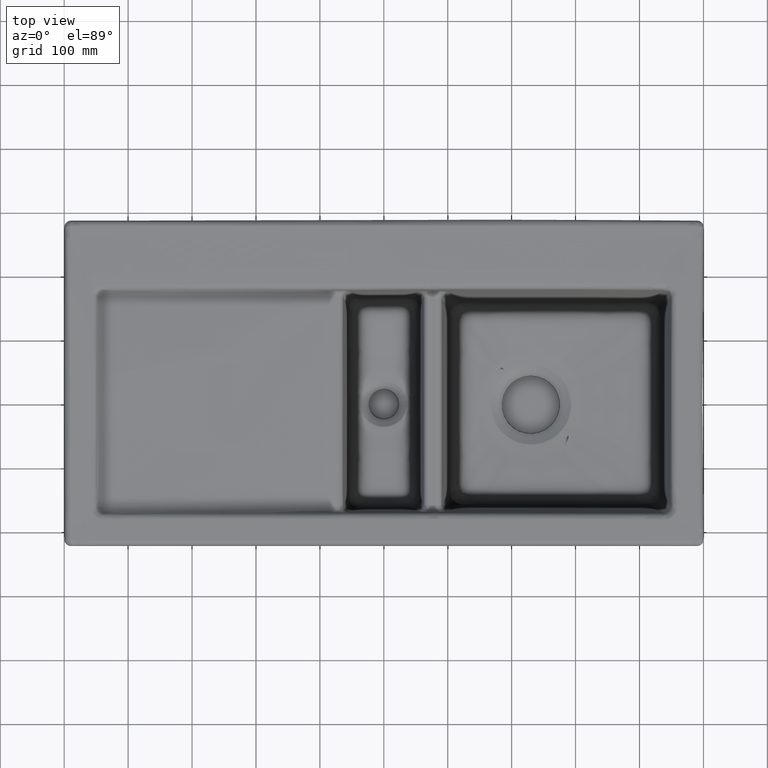
[diagram: clean part render]
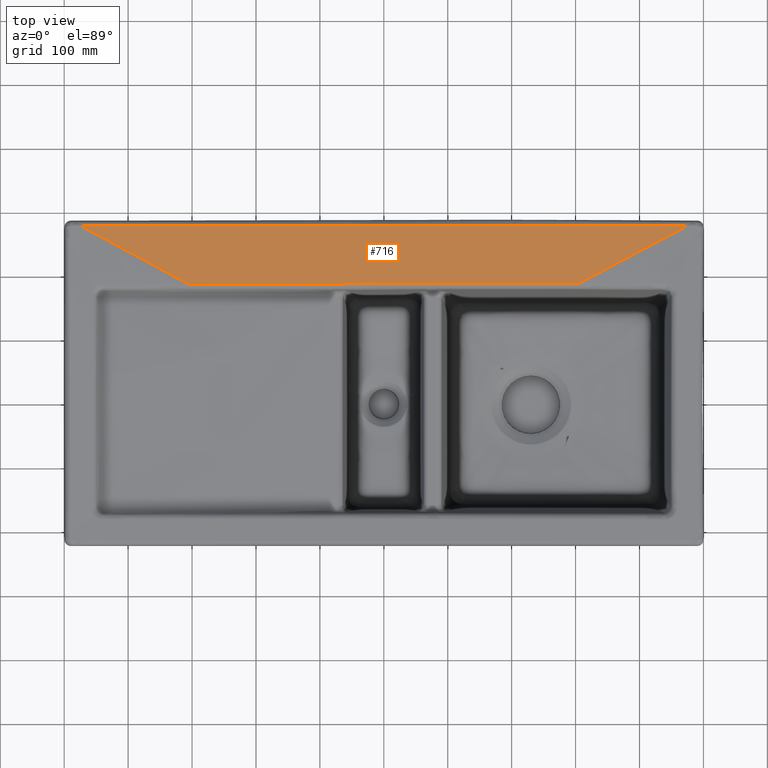
[diagram: same view with one face highlighted and labeled with its STEP entity id]
A machine part, top view. The second image highlights one B-rep face of the part: STEP entity #716.
In plain terms, the highlighted face is a freeform B-spline surface patch.
Its self-contained STEP definition (entity closure, byte-faithful):
#306=(
BOUNDED_CURVE()
B_SPLINE_CURVE(3,(#15123,#15124,#15125,#15126),.UNSPECIFIED.,.F.,.F.)
B_SPLINE_CURVE_WITH_KNOTS((4,4),(0.,1.),.UNSPECIFIED.)
CURVE()
GEOMETRIC_REPRESENTATION_ITEM()
RATIONAL_B_SPLINE_CURVE((1.,1.,1.,1.))
REPRESENTATION_ITEM('')
);
#716=ADVANCED_FACE('',(#1228),#1016,.T.);
#1016=B_SPLINE_SURFACE_WITH_KNOTS('',3,1,((#15144,#15145),(#15146,#15147),
(#15148,#15149),(#15150,#15151),(#15152,#15153),(#15154,#15155),(#15156,
#15157),(#15158,#15159),(#15160,#15161),(#15162,#15163),(#15164,#15165),
(#15166,#15167),(#15168,#15169),(#15170,#15171),(#15172,#15173),(#15174,
#15175),(#15176,#15177),(#15178,#15179),(#15180,#15181)),.UNSPECIFIED.,
 .F.,.F.,.F.,(4,1,1,1,1,1,1,1,1,1,1,1,1,1,1,1,4),(2,2),(0.,0.03125,0.0625,
0.078125,0.09375,0.125,0.25,0.375,0.4375,0.5,0.53125,0.5625,0.59375,0.625,
0.75,0.875,1.),(0.,1.),.UNSPECIFIED.);
#1228=FACE_OUTER_BOUND('',#1631,.T.);
#1631=EDGE_LOOP('',(#2529,#2530,#2531,#2532,#2533,#2534,#2535,#2536));
#2529=ORIENTED_EDGE('',*,*,#4766,.F.);
#2530=ORIENTED_EDGE('',*,*,#4767,.F.);
#2531=ORIENTED_EDGE('',*,*,#4768,.F.);
#2532=ORIENTED_EDGE('',*,*,#4738,.T.);
#2533=ORIENTED_EDGE('',*,*,#4717,.T.);
#2534=ORIENTED_EDGE('',*,*,#4719,.T.);
#2535=ORIENTED_EDGE('',*,*,#4720,.T.);
#2536=ORIENTED_EDGE('',*,*,#4722,.T.);
#3992=VERTEX_POINT('',#12204);
#3995=VERTEX_POINT('',#12366);
#4025=VERTEX_POINT('',#13798);
#4026=VERTEX_POINT('',#13803);
#4027=VERTEX_POINT('',#13896);
#4035=VERTEX_POINT('',#14441);
#4051=VERTEX_POINT('',#15122);
#4052=VERTEX_POINT('',#15127);
#4717=EDGE_CURVE('',#4026,#4025,#5611,.T.);
#4719=EDGE_CURVE('',#4025,#3992,#5612,.T.);
#4720=EDGE_CURVE('',#3992,#3995,#5613,.T.);
#4722=EDGE_CURVE('',#3995,#4027,#5614,.T.);
#4738=EDGE_CURVE('',#4035,#4026,#5628,.T.);
#4766=EDGE_CURVE('',#4051,#4027,#5645,.T.);
#4767=EDGE_CURVE('',#4052,#4051,#306,.T.);
#4768=EDGE_CURVE('',#4035,#4052,#5646,.T.);
#5611=B_SPLINE_CURVE_WITH_KNOTS('',3,(#13799,#13800,#13801,#13802),
 .UNSPECIFIED.,.F.,.F.,(4,4),(0.,1.),.UNSPECIFIED.);
#5612=B_SPLINE_CURVE_WITH_KNOTS('',3,(#13817,#13818,#13819,#13820),
 .UNSPECIFIED.,.F.,.F.,(4,4),(0.,1.),.UNSPECIFIED.);
#5613=B_SPLINE_CURVE_WITH_KNOTS('',3,(#13833,#13834,#13835,#13836,#13837,
#13838,#13839,#13840,#13841,#13842,#13843,#13844,#13845,#13846,#13847,#13848,
#13849,#13850,#13851,#13852,#13853,#13854,#13855,#13856,#13857,#13858,#13859,
#13860,#13861,#13862,#13863,#13864,#13865,#13866,#13867,#13868,#13869,#13870,
#13871,#13872,#13873,#13874),.UNSPECIFIED.,.F.,.F.,(4,2,2,2,1,1,1,2,2,2,
2,2,1,1,1,1,2,2,2,2,1,1,1,2,2,4),(0.,0.249999999999956,0.374999999999934,
0.437499999999924,0.468749999999919,0.484374999999917,0.492187499999916,
0.496093749999915,0.499999999999914,0.562499999999901,0.593749999999895,
0.609374999999891,0.61718749999989,0.621093749999889,0.623046874999889,
0.624023437499888,0.624511718749888,0.624999999999889,0.687499999999896,
0.718749999999899,0.734374999999901,0.742187499999901,0.746093749999901,
0.748046874999901,0.749999999999901,1.),.UNSPECIFIED.);
#5614=B_SPLINE_CURVE_WITH_KNOTS('',3,(#13897,#13898,#13899,#13900,#13901,
#13902,#13903,#13904,#13905,#13906,#13907,#13908,#13909,#13910,#13911,#13912,
#13913,#13914,#13915),.UNSPECIFIED.,.F.,.F.,(4,1,1,1,1,1,1,1,1,1,1,1,1,
1,1,1,4),(0.,0.00586969885441091,0.0388021154825805,0.0552683237966652,
0.07173453211075,0.10466694873892,0.236396615251598,0.368126281764276,0.433991115020615,
0.499855948276954,0.532788364905124,0.565720781533293,0.598653198161463,
0.631585614789632,0.76331528130231,0.895044947814989,1.),.UNSPECIFIED.);
#5628=B_SPLINE_CURVE_WITH_KNOTS('',3,(#14412,#14413,#14414,#14415,#14416,
#14417,#14418,#14419,#14420,#14421,#14422,#14423,#14424,#14425,#14426,#14427,
#14428,#14429,#14430,#14431,#14432,#14433,#14434,#14435,#14436,#14437,#14438,
#14439,#14440),.UNSPECIFIED.,.F.,.F.,(4,2,1,1,1,1,1,1,2,2,2,2,1,1,1,1,1,
2,2,4),(0.,0.124999999999932,0.187499999999899,0.218749999999882,0.234374999999873,
0.242187499999869,0.246093749999867,0.248046874999866,0.249023437499866,
0.249999999999866,0.374999999999888,0.437499999999899,0.468749999999905,
0.484374999999908,0.492187499999909,0.49609374999991,0.49804687499991,0.49902343749991,
0.499999999999911,1.),.UNSPECIFIED.);
#5645=B_SPLINE_CURVE_WITH_KNOTS('',3,(#15113,#15114,#15115,#15116,#15117,
#15118,#15119,#15120,#15121),.UNSPECIFIED.,.F.,.F.,(4,1,1,1,1,1,4),(0.,
0.20344481328082,0.351401205190656,0.499357597100492,0.647313989010328,
0.795270380920166,1.),.UNSPECIFIED.);
#5646=B_SPLINE_CURVE_WITH_KNOTS('',3,(#15128,#15129,#15130,#15131,#15132,
#15133,#15134,#15135,#15136,#15137,#15138,#15139,#15140,#15141,#15142,#15143),
 .UNSPECIFIED.,.F.,.F.,(4,2,2,2,1,1,2,2,4),(0.,0.249999999999997,0.374999999999996,
0.437499999999995,0.468749999999995,0.484374999999995,0.492187499999995,
0.499999999999995,1.),.UNSPECIFIED.);
#12204=CARTESIAN_POINT('',(305.495493302124,186.562455469224,-1.98453262709786));
#12366=CARTESIAN_POINT('',(474.659357011872,276.264088562526,-0.166399912060314));
#13798=CARTESIAN_POINT('',(86.9753917076634,186.592408248742,-1.98464951244879));
#13799=CARTESIAN_POINT('',(65.7871494000925,186.48882743156,-1.98445913015452));
#13800=CARTESIAN_POINT('',(72.8498780743463,186.526785262853,-1.98452259091928));
#13801=CARTESIAN_POINT('',(79.9126265994004,186.561308400331,-1.98458605168403));
#13802=CARTESIAN_POINT('',(86.9753917076634,186.592408248742,-1.98464951244878));
#13803=CARTESIAN_POINT('',(65.7871494592263,186.488816480849,-1.98445934918279));
#13817=CARTESIAN_POINT('',(86.9753917076633,186.592408248742,-1.98464951244878));
#13818=CARTESIAN_POINT('',(141.244657285508,186.830885998949,-1.98514691541313));
#13819=CARTESIAN_POINT('',(214.085891008824,187.006582431684,-1.9851325349872));
#13820=CARTESIAN_POINT('',(305.495372212793,186.562447715754,-1.984606371171));
#13833=CARTESIAN_POINT('',(305.49557965032,186.562623903499,-1.9846028261101));
#13834=CARTESIAN_POINT('',(320.485554953781,194.511502267416,-1.82408439561792));
#13835=CARTESIAN_POINT('',(335.157980270454,202.290517734538,-1.66669635398864));
#13836=CARTESIAN_POINT('',(356.690272310256,213.707697867846,-1.43530987483907));
#13837=CARTESIAN_POINT('',(363.788312103557,217.47153098816,-1.35896364567161));
#13838=CARTESIAN_POINT('',(374.316283711937,223.054844685716,-1.245618197744));
#13839=CARTESIAN_POINT('',(377.80575986606,224.905574194696,-1.20803203107206));
#13840=CARTESIAN_POINT('',(383.010200457292,227.665952807297,-1.15194625502005));
#13841=CARTESIAN_POINT('',(385.604977260943,229.042204421273,-1.12397673548302));
#13842=CARTESIAN_POINT('',(388.61919005737,230.640880435613,-1.09147402421219));
#13843=CARTESIAN_POINT('',(390.123039669173,231.438473498164,-1.0752547672907));
#13844=CARTESIAN_POINT('',(390.766848753871,231.779924411363,-1.06831053547733));
#13845=CARTESIAN_POINT('',(391.195899722282,232.007475005484,-1.06368257611194));
#13846=CARTESIAN_POINT('',(391.437532709866,232.135626290365,-1.06107611079524));
#13847=CARTESIAN_POINT('',(394.619683630089,233.823288455235,-1.02674968897719));
#13848=CARTESIAN_POINT('',(397.734655121026,235.475537205206,-0.993127381068641));
#13849=CARTESIAN_POINT('',(402.587115457507,238.049131323354,-0.940721288144945));
#13850=CARTESIAN_POINT('',(404.234602737798,238.922864813327,-0.922923818660235));
#13851=CARTESIAN_POINT('',(406.750833540307,240.257183592684,-0.895734456667953));
#13852=CARTESIAN_POINT('',(407.597077084801,240.705906400234,-0.88658914304299));
#13853=CARTESIAN_POINT('',(408.877692500469,241.38493037776,-0.87274788316424));
#13854=CARTESIAN_POINT('',(409.520812738161,241.725927755379,-0.865796430864539));
#13855=CARTESIAN_POINT('',(410.276041668342,242.1263623621,-0.857632464050984));
#13856=CARTESIAN_POINT('',(410.654886637744,242.327231394484,-0.853536995861564));
#13857=CARTESIAN_POINT('',(410.844616749504,242.427828924608,-0.851485890571193));
#13858=CARTESIAN_POINT('',(410.925995574735,242.470977092209,-0.850606123047679));
#13859=CARTESIAN_POINT('',(410.980262773831,242.4997503028,-0.850019450832209));
#13860=CARTESIAN_POINT('',(410.98077938286,242.500024216227,-0.850013866912958));
#13861=CARTESIAN_POINT('',(417.917440072903,246.177936242911,-0.775022413540802));
#13862=CARTESIAN_POINT('',(423.423954130873,249.094600115374,-0.715502137843322));
#13863=CARTESIAN_POINT('',(429.619228686927,252.379133598598,-0.648556497165251));
#13864=CARTESIAN_POINT('',(431.340234791903,253.292088144946,-0.629963745750586));
#13865=CARTESIAN_POINT('',(433.405610297361,254.388040912915,-0.607658311845626));
#13866=CARTESIAN_POINT('',(434.309264579531,254.867632786165,-0.597901518197406));
#13867=CARTESIAN_POINT('',(435.137717937522,255.307272853978,-0.588961458056936));
#13868=CARTESIAN_POINT('',(435.495491968363,255.497097162063,-0.585102144432314));
#13869=CARTESIAN_POINT('',(435.636726684717,255.572020381426,-0.583579020688679));
#13870=CARTESIAN_POINT('',(435.728194935994,255.620540037668,-0.582592686595094));
#13871=CARTESIAN_POINT('',(435.73331022494,255.623254883561,-0.582537488034135));
#13872=CARTESIAN_POINT('',(446.352670477471,261.255517443383,-0.468048320145799));
#13873=CARTESIAN_POINT('',(459.300322197982,268.115109883977,-0.329638749550228));
#13874=CARTESIAN_POINT('',(474.65856535946,276.26302166547,-0.166421263318051));
#13896=CARTESIAN_POINT('',(-474.254555776648,276.262162140007,-0.166397974359363));
#13897=CARTESIAN_POINT('',(474.657885993773,276.264219711296,-0.166397313969189));
#13898=CARTESIAN_POINT('',(472.801253107645,276.265790016638,-0.166397313969189));
#13899=CARTESIAN_POINT('',(460.527846503182,276.280045488081,-0.166397313969189));
#13900=CARTESIAN_POINT('',(443.046247365952,276.348064075879,-0.166397313969189));
#13901=CARTESIAN_POINT('',(422.213738544298,276.563835448376,-0.166397313969189));
#13902=CARTESIAN_POINT('',(401.381356869636,276.786157816676,-0.166397313969189));
#13903=CARTESIAN_POINT('',(344.091287806809,277.291908218387,-0.166397313969189));
#13904=CARTESIAN_POINT('',(250.341350303588,277.808402840194,-0.166397313969189));
#13905=CARTESIAN_POINT('',(146.173125707497,277.781360321801,-0.166397313969189));
#13906=CARTESIAN_POINT('',(62.8396511145885,277.405931012298,-0.166397313969189));
#13907=CARTESIAN_POINT('',(10.7571122252139,277.021796217743,-0.166397313969189));
#13908=CARTESIAN_POINT('',(-30.9081571213358,276.632410822112,-0.166397313969189));
#13909=CARTESIAN_POINT('',(-62.1567113841793,276.276579855316,-0.166397313969189));
#13910=CARTESIAN_POINT('',(-93.407243071712,276.25175195746,-0.166397313969189));
#13911=CARTESIAN_POINT('',(-155.90787957502,276.267592831631,-0.166397313969189));
#13912=CARTESIAN_POINT('',(-249.658920387881,276.259928912613,-0.166397313969189));
#13913=CARTESIAN_POINT('',(-366.191243707717,276.262142529316,-0.166397313969189));
#13914=CARTESIAN_POINT('',(-441.056457614292,276.262203511324,-0.166397313969189));
#13915=CARTESIAN_POINT('',(-474.254555574822,276.262202329611,-0.166397313969189));
#14412=CARTESIAN_POINT('',(-65.6720894407833,185.450834939236,-1.9836017105069));
#14413=CARTESIAN_POINT('',(-60.198379535812,185.477006286656,-1.98361223691116));
#14414=CARTESIAN_POINT('',(-54.7228120461199,185.515849774778,-1.9836834205956));
#14415=CARTESIAN_POINT('',(-46.5066115688242,185.582145689148,-1.98388118204254));
#14416=CARTESIAN_POINT('',(-42.3977975788292,185.617078753037,-1.98400280924608));
#14417=CARTESIAN_POINT('',(-37.6029142737833,185.657912224482,-1.98418451399032));
#14418=CARTESIAN_POINT('',(-35.2051536313784,185.677967081133,-1.98428531794747));
#14419=CARTESIAN_POINT('',(-34.0061932820863,185.687856340244,-1.98433820782231));
#14420=CARTESIAN_POINT('',(-33.4066930653261,185.692760462622,-1.98436527473379));
#14421=CARTESIAN_POINT('',(-33.1069379420302,185.695201651255,-1.98437896368304));
#14422=CARTESIAN_POINT('',(-32.9784703855229,185.696245465211,-1.98438486369562));
#14423=CARTESIAN_POINT('',(-32.892825108889,185.696940796803,-1.98438880444179));
#14424=CARTESIAN_POINT('',(-32.8153925226403,185.697568733423,-1.98439237697442));
#14425=CARTESIAN_POINT('',(-31.7559092203818,185.706156774796,-1.98444130928373));
#14426=CARTESIAN_POINT('',(-28.4915967393467,185.739643550318,-1.98445895996918));
#14427=CARTESIAN_POINT('',(-20.2755305733275,185.821879710357,-1.98443908254187));
#14428=CARTESIAN_POINT('',(-16.9835751406327,185.854553976087,-1.98442473115685));
#14429=CARTESIAN_POINT('',(-11.215732434011,185.910295287151,-1.98439161571546));
#14430=CARTESIAN_POINT('',(-8.12433362859115,185.939844813859,-1.9843721609038));
#14431=CARTESIAN_POINT('',(-4.15461333025465,185.9769800393,-1.98434439371433));
#14432=CARTESIAN_POINT('',(-2.07898067647534,185.996177949886,-1.9843292426423));
#14433=CARTESIAN_POINT('',(-1.01847116942137,186.005930188809,-1.98432135023696));
#14434=CARTESIAN_POINT('',(-0.482543113872601,186.010844095287,-1.98431732481696));
#14435=CARTESIAN_POINT('',(-0.251643953157622,186.012958095437,-1.98431558266182));
#14436=CARTESIAN_POINT('',(-0.0974410218542293,186.014369209272,-1.9843144174528));
#14437=CARTESIAN_POINT('',(0.0238347609351386,186.015478264692,-1.98431349920174));
#14438=CARTESIAN_POINT('',(17.1233481617683,186.171802631707,-1.98418390702205));
#14439=CARTESIAN_POINT('',(39.0332693069882,186.344351914067,-1.98423253487843));
#14440=CARTESIAN_POINT('',(65.7871494000925,186.488827431558,-1.98445913015456));
#14441=CARTESIAN_POINT('',(-65.6720893882557,185.450823953452,-1.98360193023662));
#15113=CARTESIAN_POINT('',(-305.286341158316,185.018337622055,-1.99125625587201));
#15114=CARTESIAN_POINT('',(-316.744910088654,191.206032114269,-1.86750193452826));
#15115=CARTESIAN_POINT('',(-336.53678813807,201.893762453152,-1.65374796953907));
#15116=CARTESIAN_POINT('',(-364.661975318199,217.081528644986,-1.34999575214227));
#15117=CARTESIAN_POINT('',(-389.661902679827,230.581636187364,-1.07999734632056));
#15118=CARTESIAN_POINT('',(-414.661830044172,244.081743731208,-0.809999265439181));
#15119=CARTESIAN_POINT('',(-442.859381014074,259.308586794346,-0.505466618214019));
#15120=CARTESIAN_POINT('',(-462.723622855599,270.035394005794,-0.290932502592367));
#15121=CARTESIAN_POINT('',(-474.254555574822,276.262165368833,-0.166397645249217));
#15122=CARTESIAN_POINT('',(-305.286349976594,185.018328636856,-1.99125663684663));
#15123=CARTESIAN_POINT('',(-134.747286457975,185.388748153674,-1.98383535896174));
#15124=CARTESIAN_POINT('',(-191.593712717572,185.41093050222,-1.98355589181128));
#15125=CARTESIAN_POINT('',(-248.440276811576,185.281444553942,-1.98599300066901));
#15126=CARTESIAN_POINT('',(-305.286317572778,185.018324885714,-1.99125706475287));
#15127=CARTESIAN_POINT('',(-134.736531412737,185.388743954387,-1.98383541180073));
#15128=CARTESIAN_POINT('',(-65.6720894407833,185.450834939236,-1.9836017105069));
#15129=CARTESIAN_POINT('',(-70.2722834448685,185.425709519157,-1.98365547500668));
#15130=CARTESIAN_POINT('',(-75.4496127878822,185.404985047489,-1.9837062120159));
#15131=CARTESIAN_POINT('',(-84.0812676924682,185.383989534315,-1.98377544645377));
#15132=CARTESIAN_POINT('',(-87.1027629929982,185.378648271977,-1.98379724237259));
#15133=CARTESIAN_POINT('',(-91.8514193523069,185.37323357026,-1.98382594799471));
#15134=CARTESIAN_POINT('',(-93.4703737372842,185.371858716127,-1.98383483656533));
#15135=CARTESIAN_POINT('',(-95.9529087776248,185.370426433746,-1.98384673504342));
#15136=CARTESIAN_POINT('',(-97.2077021673379,185.369867460893,-1.98385232390556));
#15137=CARTESIAN_POINT('',(-98.6952981177875,185.369483363024,-1.98385810299756));
#15138=CARTESIAN_POINT('',(-99.337911461909,185.369375182281,-1.98386040770635));
#15139=CARTESIAN_POINT('',(-99.7674475196474,185.369315483273,-1.98386190443887));
#15140=CARTESIAN_POINT('',(-100.018854144602,185.36928892265,-1.98386275121829));
#15141=CARTESIAN_POINT('',(-111.707165574496,185.368342020738,-1.9839010738139));
#15142=CARTESIAN_POINT('',(-123.186579099593,185.384227612959,-1.98389203594202));
#15143=CARTESIAN_POINT('',(-134.725776368003,185.388739751375,-1.98383546456248));
#15144=CARTESIAN_POINT('',(500.338389165629,284.582065588388,0.));
#15145=CARTESIAN_POINT('',(500.338389165628,176.582065588388,-2.16));
#15146=CARTESIAN_POINT('',(489.921610056013,284.582065588388,0.));
#15147=CARTESIAN_POINT('',(489.921610055265,176.582065588388,-2.16));
#15148=CARTESIAN_POINT('',(469.08789556776,284.566600186315,0.));
#15149=CARTESIAN_POINT('',(469.087900328235,176.566664846911,-2.16));
#15150=CARTESIAN_POINT('',(443.046248648552,284.668190369292,0.));
#15151=CARTESIAN_POINT('',(443.046231999148,176.664807591738,-2.16));
#15152=CARTESIAN_POINT('',(422.213741477877,284.884154561342,0.));
#15153=CARTESIAN_POINT('',(422.213703397156,176.878268797256,-2.16));
#15154=CARTESIAN_POINT('',(401.381359373535,285.106400056106,0.));
#15155=CARTESIAN_POINT('',(401.381326870474,177.101512185756,-2.16));
#15156=CARTESIAN_POINT('',(344.091288177328,285.611946740175,0.));
#15157=CARTESIAN_POINT('',(344.091283367627,177.609703324222,-2.16));
#15158=CARTESIAN_POINT('',(250.341350200466,286.128253229751,0.));
#15159=CARTESIAN_POINT('',(250.341351539085,178.128451954284,-2.16));
#15160=CARTESIAN_POINT('',(146.173125853266,286.101219050047,0.));
#15161=CARTESIAN_POINT('',(146.173123961043,178.101309530244,-2.16));
#15162=CARTESIAN_POINT('',(62.8396506673269,285.725931919132,0.));
#15163=CARTESIAN_POINT('',(62.8396564732198,177.724176782096,-2.16));
#15164=CARTESIAN_POINT('',(10.7571113477337,285.34188633721,0.));
#15165=CARTESIAN_POINT('',(10.7571227382855,177.338973132871,-2.16));
#15166=CARTESIAN_POINT('',(-30.9081612103111,284.952819239467,0.));
#15167=CARTESIAN_POINT('',(-30.9081081314095,176.945774217009,-2.16));
#15168=CARTESIAN_POINT('',(-62.1567112710383,284.596533502982,0.));
#15169=CARTESIAN_POINT('',(-62.1567127397186,176.595391836194,-2.16));
#15170=CARTESIAN_POINT('',(-93.4072431606157,284.571612556349,0.));
#15171=CARTESIAN_POINT('',(-93.4072420065583,176.571678753762,-2.16));
#15172=CARTESIAN_POINT('',(-155.907879483021,284.587461406876,0.));
#15173=CARTESIAN_POINT('',(-155.907880677258,176.587424063387,-2.16));
#15174=CARTESIAN_POINT('',(-249.65892042666,284.579793410318,0.));
#15175=CARTESIAN_POINT('',(-249.658919923274,176.579808997289,-2.16));
#15176=CARTESIAN_POINT('',(-374.660261583127,284.582169148481,0.));
#15177=CARTESIAN_POINT('',(-374.660261572232,176.582168557619,-2.16));
#15178=CARTESIAN_POINT('',(-457.994494395905,284.582065588397,0.));
#15179=CARTESIAN_POINT('',(-457.994494392916,176.582065588397,-2.16));
#15180=CARTESIAN_POINT('',(-499.661610834371,284.582065588397,0.));
#15181=CARTESIAN_POINT('',(-499.661610834372,176.582065588397,-2.16));